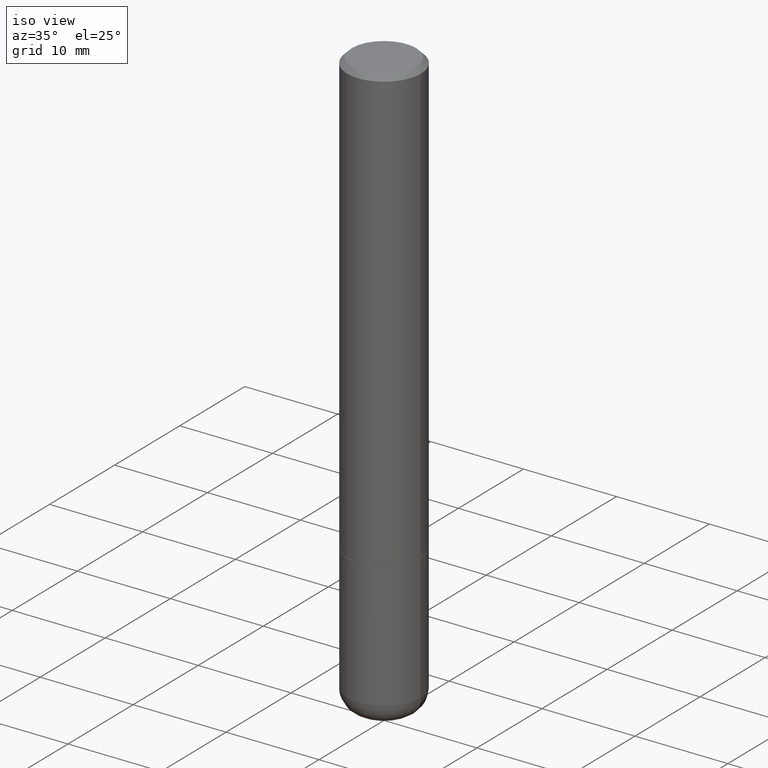
[diagram: clean part render]
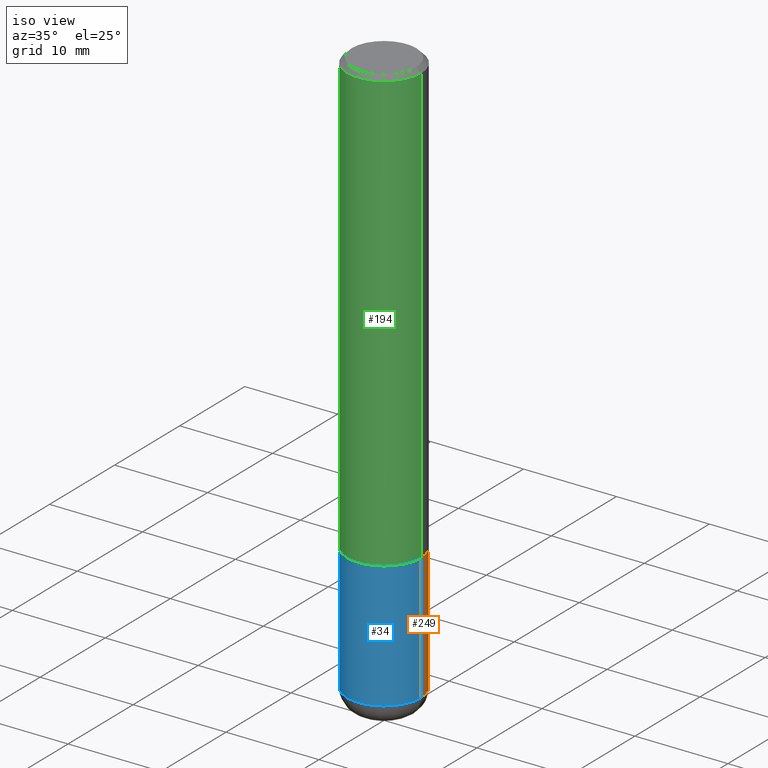
[diagram: same view with three faces highlighted in distinct colors, each labeled with its STEP entity id]
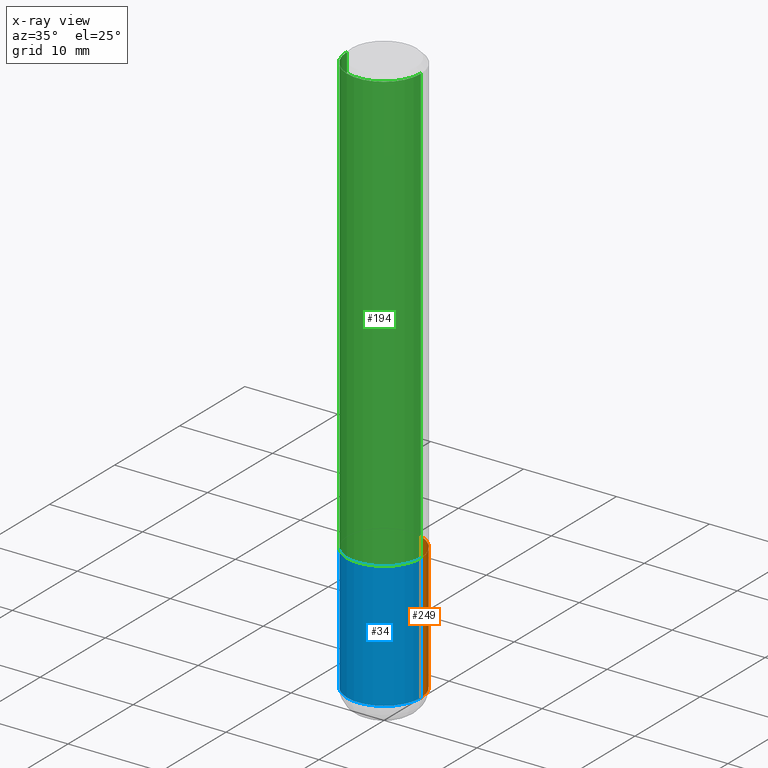
[diagram: x-ray of the same camera — body ghosted, the three highlighted faces saturated]
A machine part, iso view with three faces highlighted in distinct colors.
The next image is the same camera in x-ray (body ghosted, the three faces saturated) — at least one of them is partly hidden behind the body in this view.
Their STEP definitions:

[orange] entity #249 — the highlighted cylindrical surface (partial cylindrical patch) has radius 3.9688 mm, axis along (-0, 0, 1).
#7 = CARTESIAN_POINT ( 'NONE',  ( 0.1562500000000000000, -7.637615428719378669E-15, -1.875000000000000000 ) ) ;
#13 = LINE ( 'NONE', #363, #79 ) ;
#14 = ORIENTED_EDGE ( 'NONE', *, *, #226, .T. ) ;
#37 = VECTOR ( 'NONE', #196, 39.37007874015748143 ) ;
#52 = ORIENTED_EDGE ( 'NONE', *, *, #92, .F. ) ;
#68 = DIRECTION ( 'NONE',  ( -2.445468806185136597E-29, 3.491481338843145583E-15, 1.000000000000000000 ) ) ;
#75 = DIRECTION ( 'NONE',  ( 1.000000000000000000, -6.982962677686262766E-15, 0.000000000000000000 ) ) ;
#79 = VECTOR ( 'NONE', #327, 39.37007874015748143 ) ;
#89 = VERTEX_POINT ( 'NONE', #7 ) ;
#92 = EDGE_CURVE ( 'NONE', #275, #89, #13, .T. ) ;
#127 = FACE_OUTER_BOUND ( 'NONE', #173, .T. ) ;
#135 = AXIS2_PLACEMENT_3D ( 'NONE', #388, #68, #75 ) ;
#163 = DIRECTION ( 'NONE',  ( -2.445468806185136597E-29, 3.491481338843145583E-15, 1.000000000000000000 ) ) ;
#173 = EDGE_LOOP ( 'NONE', ( #14, #297, #270, #52 ) ) ;
#196 = DIRECTION ( 'NONE',  ( -2.445468806185136877E-29, 3.491481338843145188E-15, 1.000000000000000000 ) ) ;
#214 = DIRECTION ( 'NONE',  ( 1.000000000000000000, -6.982962677686269077E-15, 0.000000000000000000 ) ) ;
#226 = EDGE_CURVE ( 'NONE', #275, #330, #375, .T. ) ;
#232 = AXIS2_PLACEMENT_3D ( 'NONE', #286, #415, #214 ) ;
#237 = CARTESIAN_POINT ( 'NONE',  ( -0.1562500000000000000, -6.370275743846283652E-15, -1.875000000000000000 ) ) ;
#249 = ADVANCED_FACE ( 'NONE', ( #127 ), #255, .T. ) ;
#255 = CYLINDRICAL_SURFACE ( 'NONE', #277, 0.1562500000000000000 ) ;
#266 = CARTESIAN_POINT ( 'NONE',  ( -0.1562500000000000000, 1.110223024625156540E-15, -7.685836078523291160E-30 ) ) ;
#270 = ORIENTED_EDGE ( 'NONE', *, *, #280, .F. ) ;
#275 = VERTEX_POINT ( 'NONE', #313 ) ;
#277 = AXIS2_PLACEMENT_3D ( 'NONE', #391, #163, #278 ) ;
#278 = DIRECTION ( 'NONE',  ( 1.000000000000000000, -6.982962677686266711E-15, 4.876176775795936353E-29 ) ) ;
#280 = EDGE_CURVE ( 'NONE', #89, #333, #398, .T. ) ;
#286 = CARTESIAN_POINT ( 'NONE',  ( 4.585254011597131119E-29, -6.546527510330898707E-15, -1.875000000000000000 ) ) ;
#297 = ORIENTED_EDGE ( 'NONE', *, *, #300, .T. ) ;
#300 = EDGE_CURVE ( 'NONE', #330, #333, #324, .T. ) ;
#313 = CARTESIAN_POINT ( 'NONE',  ( 0.1562499999999999722, -9.505557945000458485E-15, -2.410000000000000142 ) ) ;
#324 = LINE ( 'NONE', #266, #37 ) ;
#327 = DIRECTION ( 'NONE',  ( -2.445468806185136877E-29, 3.491481338843145188E-15, 1.000000000000000000 ) ) ;
#330 = VERTEX_POINT ( 'NONE', #410 ) ;
#333 = VERTEX_POINT ( 'NONE', #237 ) ;
#363 = CARTESIAN_POINT ( 'NONE',  ( 0.1562500000000000000, -1.091087918388479174E-15, 7.619026212181150377E-30 ) ) ;
#375 = CIRCLE ( 'NONE', #135, 0.1562500000000000000 ) ;
#388 = CARTESIAN_POINT ( 'NONE',  ( 5.893579822906179826E-29, -8.414470026611981678E-15, -2.410000000000000142 ) ) ;
#391 = CARTESIAN_POINT ( 'NONE',  ( 0.000000000000000000, 0.000000000000000000, 0.000000000000000000 ) ) ;
#398 = CIRCLE ( 'NONE', #232, 0.1562500000000000000 ) ;
#410 = CARTESIAN_POINT ( 'NONE',  ( -0.1562499999999999722, -7.304247001986825138E-15, -2.410000000000000142 ) ) ;
#415 = DIRECTION ( 'NONE',  ( -2.445468806185136597E-29, 3.491481338843145583E-15, 1.000000000000000000 ) ) ;

[blue] entity #34 — the highlighted cylindrical surface (partial cylindrical patch) has radius 3.9688 mm, axis along (-0, 0, 1).
#7 = CARTESIAN_POINT ( 'NONE',  ( 0.1562500000000000000, -7.637615428719378669E-15, -1.875000000000000000 ) ) ;
#13 = LINE ( 'NONE', #363, #79 ) ;
#29 = CARTESIAN_POINT ( 'NONE',  ( 4.585254011597131119E-29, -6.546527510330898707E-15, -1.875000000000000000 ) ) ;
#34 = ADVANCED_FACE ( 'NONE', ( #174 ), #120, .T. ) ;
#37 = VECTOR ( 'NONE', #196, 39.37007874015748143 ) ;
#50 = AXIS2_PLACEMENT_3D ( 'NONE', #29, #244, #329 ) ;
#72 = DIRECTION ( 'NONE',  ( -2.445468806185136597E-29, 3.491481338843145583E-15, 1.000000000000000000 ) ) ;
#74 = ORIENTED_EDGE ( 'NONE', *, *, #300, .F. ) ;
#79 = VECTOR ( 'NONE', #327, 39.37007874015748143 ) ;
#89 = VERTEX_POINT ( 'NONE', #7 ) ;
#92 = EDGE_CURVE ( 'NONE', #275, #89, #13, .T. ) ;
#117 = AXIS2_PLACEMENT_3D ( 'NONE', #238, #380, #331 ) ;
#120 = CYLINDRICAL_SURFACE ( 'NONE', #117, 0.1562500000000000000 ) ;
#128 = AXIS2_PLACEMENT_3D ( 'NONE', #150, #72, #285 ) ;
#131 = EDGE_CURVE ( 'NONE', #330, #275, #210, .T. ) ;
#143 = ORIENTED_EDGE ( 'NONE', *, *, #131, .T. ) ;
#150 = CARTESIAN_POINT ( 'NONE',  ( 5.893579822906179826E-29, -8.414470026611981678E-15, -2.410000000000000142 ) ) ;
#174 = FACE_OUTER_BOUND ( 'NONE', #230, .T. ) ;
#177 = ORIENTED_EDGE ( 'NONE', *, *, #92, .T. ) ;
#196 = DIRECTION ( 'NONE',  ( -2.445468806185136877E-29, 3.491481338843145188E-15, 1.000000000000000000 ) ) ;
#210 = CIRCLE ( 'NONE', #128, 0.1562500000000000000 ) ;
#230 = EDGE_LOOP ( 'NONE', ( #74, #143, #177, #268 ) ) ;
#237 = CARTESIAN_POINT ( 'NONE',  ( -0.1562500000000000000, -6.370275743846283652E-15, -1.875000000000000000 ) ) ;
#238 = CARTESIAN_POINT ( 'NONE',  ( 0.000000000000000000, 0.000000000000000000, 0.000000000000000000 ) ) ;
#244 = DIRECTION ( 'NONE',  ( -2.445468806185136597E-29, 3.491481338843145583E-15, 1.000000000000000000 ) ) ;
#260 = EDGE_CURVE ( 'NONE', #333, #89, #284, .T. ) ;
#266 = CARTESIAN_POINT ( 'NONE',  ( -0.1562500000000000000, 1.110223024625156540E-15, -7.685836078523291160E-30 ) ) ;
#268 = ORIENTED_EDGE ( 'NONE', *, *, #260, .F. ) ;
#275 = VERTEX_POINT ( 'NONE', #313 ) ;
#284 = CIRCLE ( 'NONE', #50, 0.1562500000000000000 ) ;
#285 = DIRECTION ( 'NONE',  ( 1.000000000000000000, -6.982962677686262766E-15, 0.000000000000000000 ) ) ;
#300 = EDGE_CURVE ( 'NONE', #330, #333, #324, .T. ) ;
#313 = CARTESIAN_POINT ( 'NONE',  ( 0.1562499999999999722, -9.505557945000458485E-15, -2.410000000000000142 ) ) ;
#324 = LINE ( 'NONE', #266, #37 ) ;
#327 = DIRECTION ( 'NONE',  ( -2.445468806185136877E-29, 3.491481338843145188E-15, 1.000000000000000000 ) ) ;
#329 = DIRECTION ( 'NONE',  ( 1.000000000000000000, -6.982962677686269077E-15, 0.000000000000000000 ) ) ;
#330 = VERTEX_POINT ( 'NONE', #410 ) ;
#331 = DIRECTION ( 'NONE',  ( 1.000000000000000000, -6.982962677686266711E-15, 4.876176775795936353E-29 ) ) ;
#333 = VERTEX_POINT ( 'NONE', #237 ) ;
#363 = CARTESIAN_POINT ( 'NONE',  ( 0.1562500000000000000, -1.091087918388479174E-15, 7.619026212181150377E-30 ) ) ;
#380 = DIRECTION ( 'NONE',  ( -2.445468806185136597E-29, 3.491481338843145583E-15, 1.000000000000000000 ) ) ;
#410 = CARTESIAN_POINT ( 'NONE',  ( -0.1562499999999999722, -7.304247001986825138E-15, -2.410000000000000142 ) ) ;

[green] entity #194 — the highlighted cylindrical surface (partial cylindrical patch) has radius 3.9688 mm, axis along (-0, 0, 1).
#6 = CARTESIAN_POINT ( 'NONE',  ( -0.1562500000000000278, 1.021258291611616467E-15, -0.02000000000000003511 ) ) ;
#43 = VERTEX_POINT ( 'NONE', #355 ) ;
#59 = EDGE_CURVE ( 'NONE', #165, #43, #145, .T. ) ;
#63 = FACE_OUTER_BOUND ( 'NONE', #245, .T. ) ;
#70 = AXIS2_PLACEMENT_3D ( 'NONE', #178, #253, #287 ) ;
#85 = DIRECTION ( 'NONE',  ( -2.445468806185136597E-29, 3.491481338843145583E-15, 1.000000000000000000 ) ) ;
#96 = ORIENTED_EDGE ( 'NONE', *, *, #123, .T. ) ;
#99 = LINE ( 'NONE', #221, #154 ) ;
#109 = ORIENTED_EDGE ( 'NONE', *, *, #372, .F. ) ;
#123 = EDGE_CURVE ( 'NONE', #206, #133, #152, .T. ) ;
#125 = CARTESIAN_POINT ( 'NONE',  ( 0.1562500000000002220, -7.634123947380535662E-15, -1.874000000000000110 ) ) ;
#133 = VERTEX_POINT ( 'NONE', #125 ) ;
#145 = CIRCLE ( 'NONE', #205, 0.1562500000000000278 ) ;
#149 = CARTESIAN_POINT ( 'NONE',  ( 4.890937612370281041E-31, -6.982962677686302702E-17, -0.02000000000000003511 ) ) ;
#152 = CIRCLE ( 'NONE', #401, 0.1562500000000002220 ) ;
#154 = VECTOR ( 'NONE', #257, 39.37007874015748143 ) ;
#161 = DIRECTION ( 'NONE',  ( -2.445468806185136597E-29, 3.491481338843145583E-15, 1.000000000000000000 ) ) ;
#165 = VERTEX_POINT ( 'NONE', #6 ) ;
#178 = CARTESIAN_POINT ( 'NONE',  ( 0.000000000000000000, 0.000000000000000000, 0.000000000000000000 ) ) ;
#189 = LINE ( 'NONE', #321, #325 ) ;
#193 = DIRECTION ( 'NONE',  ( 1.000000000000000000, -6.982962677686266711E-15, 0.000000000000000000 ) ) ;
#194 = ADVANCED_FACE ( 'NONE', ( #63 ), #407, .T. ) ;
#205 = AXIS2_PLACEMENT_3D ( 'NONE', #149, #161, #193 ) ;
#206 = VERTEX_POINT ( 'NONE', #254 ) ;
#221 = CARTESIAN_POINT ( 'NONE',  ( 0.1562500000000001388, -1.091087918388480160E-15, 7.619026212181157383E-30 ) ) ;
#234 = DIRECTION ( 'NONE',  ( -2.445468806185136877E-29, 3.491481338843145188E-15, 1.000000000000000000 ) ) ;
#245 = EDGE_LOOP ( 'NONE', ( #109, #96, #376, #326 ) ) ;
#253 = DIRECTION ( 'NONE',  ( -2.445468806185136597E-29, 3.491481338843145583E-15, 1.000000000000000000 ) ) ;
#254 = CARTESIAN_POINT ( 'NONE',  ( -0.1562500000000002220, -2.196209803259299803E-15, -1.874000000000000110 ) ) ;
#257 = DIRECTION ( 'NONE',  ( -2.445468806185136877E-29, 3.491481338843145188E-15, 1.000000000000000000 ) ) ;
#279 = DIRECTION ( 'NONE',  ( 1.000000000000000000, -6.982962677686265922E-15, 0.000000000000000000 ) ) ;
#287 = DIRECTION ( 'NONE',  ( 1.000000000000000000, -6.982962677686266711E-15, 4.876176775795936353E-29 ) ) ;
#321 = CARTESIAN_POINT ( 'NONE',  ( -0.1562500000000001388, 1.110223024625157526E-15, -7.685836078523296765E-30 ) ) ;
#325 = VECTOR ( 'NONE', #234, 39.37007874015748143 ) ;
#326 = ORIENTED_EDGE ( 'NONE', *, *, #59, .F. ) ;
#355 = CARTESIAN_POINT ( 'NONE',  ( 0.1562500000000000278, -1.141782438928665105E-15, -0.02000000000000003511 ) ) ;
#372 = EDGE_CURVE ( 'NONE', #206, #165, #189, .T. ) ;
#376 = ORIENTED_EDGE ( 'NONE', *, *, #394, .T. ) ;
#394 = EDGE_CURVE ( 'NONE', #133, #43, #99, .T. ) ;
#401 = AXIS2_PLACEMENT_3D ( 'NONE', #402, #85, #279 ) ;
#402 = CARTESIAN_POINT ( 'NONE',  ( 4.582808542790945516E-29, -6.543036028992054911E-15, -1.874000000000000110 ) ) ;
#407 = CYLINDRICAL_SURFACE ( 'NONE', #70, 0.1562500000000001388 ) ;